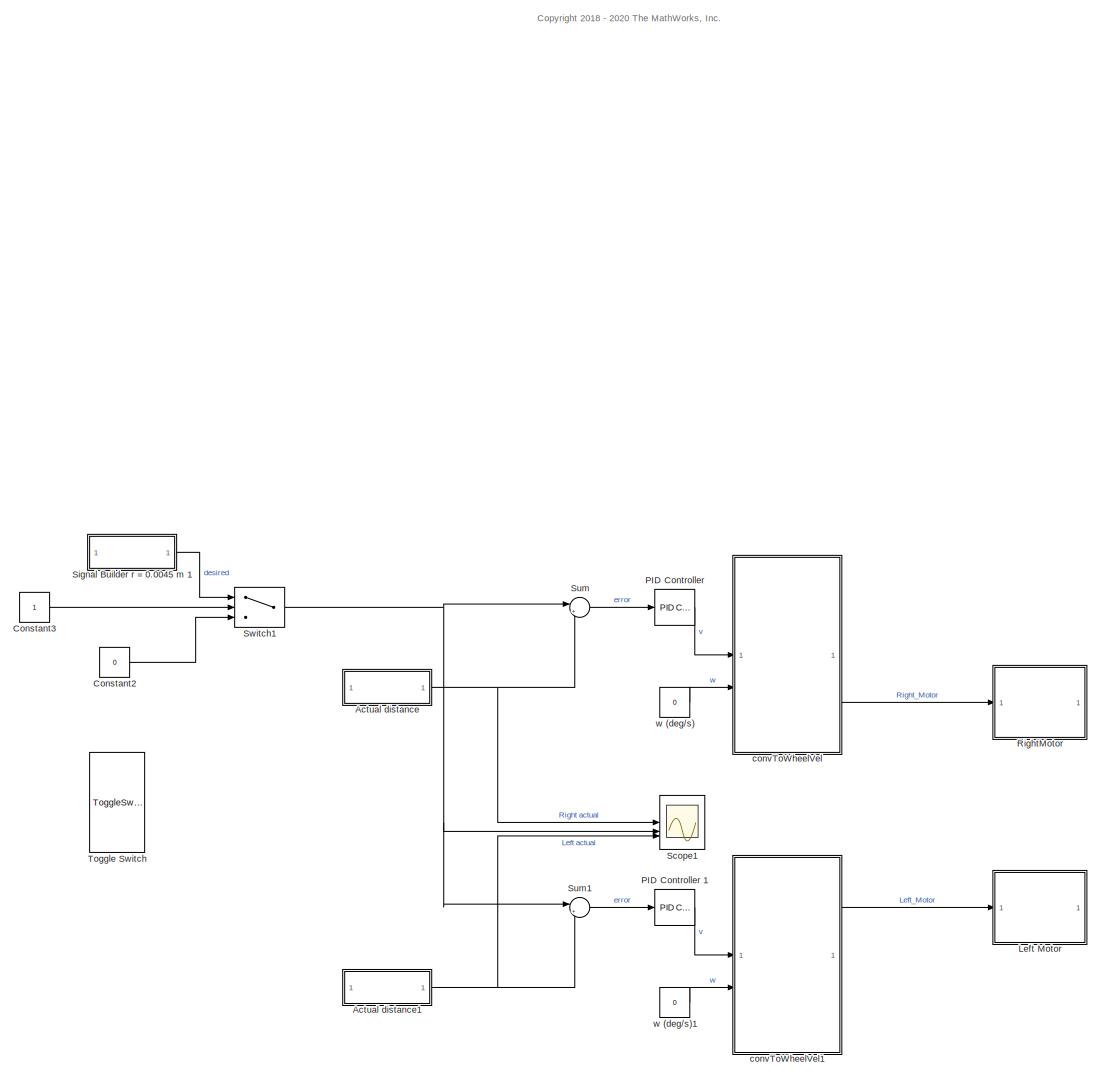
[diagram: root canvas - part 1/3, central region]
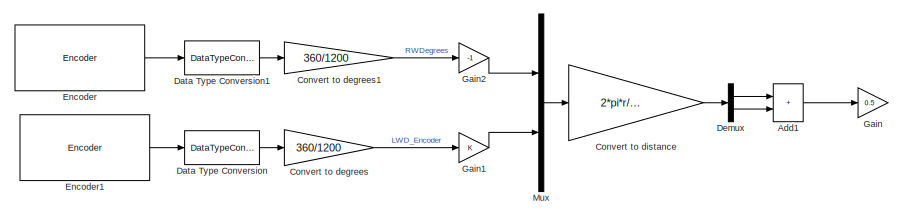
[diagram: root canvas - part 2/3, bottom left region]
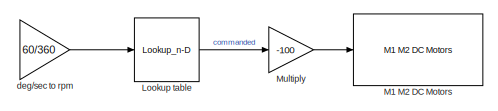
[diagram: root canvas - part 3/3, bottom right region]
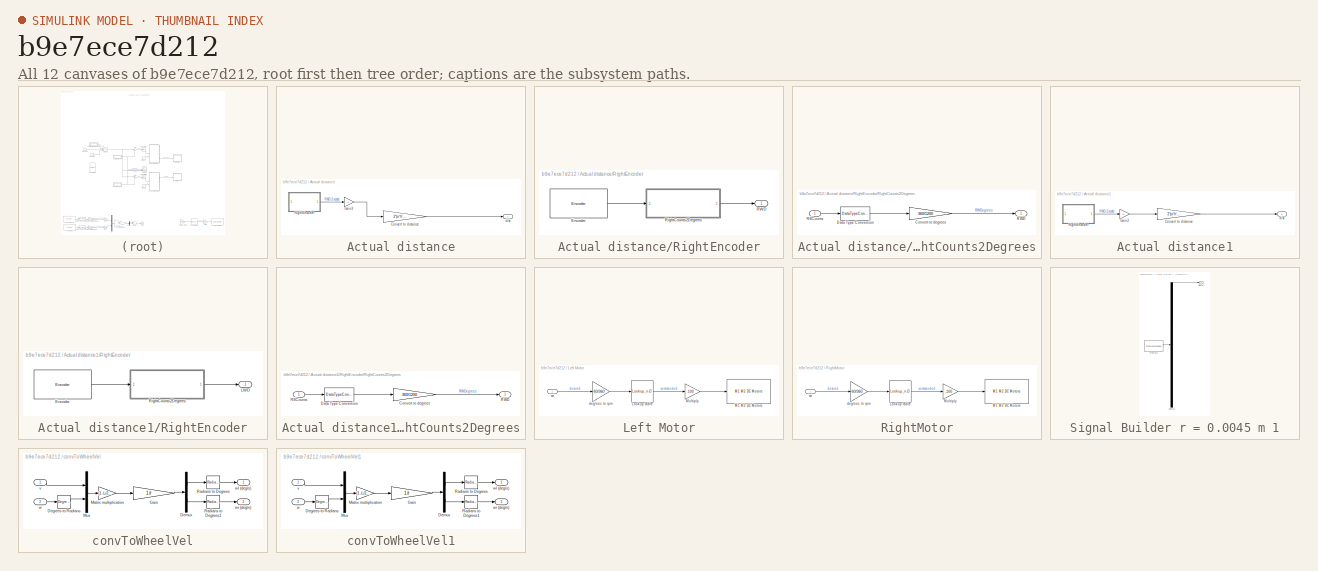
[diagram: thumbnail index - all 12 canvases of the model, root first then tree order]
MODEL slx_b9e7ece7d212
KIND model
CONFIG AbsTol = auto
CONFIG EnableMultiTasking = on
CONFIG FixedStep = TS
CONFIG MaxStep = auto
CONFIG MinStep = auto
CONFIG PostLoadFcn = paramsBasicKinematics\nload('motorResponse.mat')
CONFIG RelTol = 1e-3
CONFIG SampleTimeConstraint = Unconstrained
CONFIG SolverName = FixedStepAuto
CONFIG StartTime = 0.0
CONFIG StopTime = 30
WORKSPACE source: mxarray member
WORKSPACE TS = 0.01
BLOCK [SubSystem] Actual distance
BLOCK [Gain] Actual distance/Convert to distance
  Gain = 2*pi*r/360
BLOCK [Gain] Actual distance/Gain2
  Gain = -1
BLOCK [SubSystem] Actual distance/RightEncoder
BLOCK [Reference] Actual distance/RightEncoder/Encoder  REF=arduinomotorcarrierlib/Encoder
  SourceBlock = arduinomotorcarrierlib/Encoder
  SourceType = motorcarrier.blocks.mkrmotorcarrier_Encoder
BLOCK [Outport] Actual distance/RightEncoder/RWD
  VectorParamsAs1DForOutWhenUnconnected = off
BLOCK [SubSystem] Actual distance/RightEncoder/RightCounts2Degrees
BLOCK [Gain] Actual distance/RightEncoder/RightCounts2Degrees/Convert to degrees
  Gain = 360/1200
BLOCK [DataTypeConversion] Actual distance/RightEncoder/RightCounts2Degrees/Data Type Conversion
  OutDataTypeStr = double
  RndMeth = Floor
  SaturateOnIntegerOverflow = off
BLOCK [Inport] Actual distance/RightEncoder/RightCounts2Degrees/RECounts
BLOCK [Outport] Actual distance/RightEncoder/RightCounts2Degrees/RWD
  VectorParamsAs1DForOutWhenUnconnected = off
BLOCK [Outport] Actual distance/dist
  VectorParamsAs1DForOutWhenUnconnected = off
BLOCK [SubSystem] Actual distance1
BLOCK [Gain] Actual distance1/Convert to distance
  Gain = 2*pi*r/360
BLOCK [Gain] Actual distance1/Gain2
BLOCK [SubSystem] Actual distance1/RightEncoder
BLOCK [Reference] Actual distance1/RightEncoder/Encoder  REF=arduinomotorcarrierlib/Encoder
  SourceBlock = arduinomotorcarrierlib/Encoder
  SourceType = motorcarrier.blocks.mkrmotorcarrier_Encoder
BLOCK [Outport] Actual distance1/RightEncoder/LWD
  VectorParamsAs1DForOutWhenUnconnected = off
BLOCK [SubSystem] Actual distance1/RightEncoder/RightCounts2Degrees
BLOCK [Gain] Actual distance1/RightEncoder/RightCounts2Degrees/Convert to degrees
  Gain = 360/1200
BLOCK [DataTypeConversion] Actual distance1/RightEncoder/RightCounts2Degrees/Data Type Conversion
  OutDataTypeStr = double
  RndMeth = Floor
  SaturateOnIntegerOverflow = off
BLOCK [Inport] Actual distance1/RightEncoder/RightCounts2Degrees/RECounts
BLOCK [Outport] Actual distance1/RightEncoder/RightCounts2Degrees/RWD
  VectorParamsAs1DForOutWhenUnconnected = off
BLOCK [Outport] Actual distance1/dist
  VectorParamsAs1DForOutWhenUnconnected = off
BLOCK [Sum] Add1
  Commented = on
  IconShape = rectangular
BLOCK [Constant] Constant2
  Value = 0
BLOCK [Constant] Constant3
BLOCK [Gain] Convert to degrees
  Commented = on
  Gain = 360/1200
BLOCK [Gain] Convert to degrees1
  Commented = on
  Gain = 360/1200
BLOCK [Gain] Convert to distance
  Commented = on
  Gain = 2*pi*r/360
BLOCK [DataTypeConversion] Data Type Conversion
  Commented = on
  OutDataTypeStr = double
  RndMeth = Floor
  SaturateOnIntegerOverflow = off
BLOCK [DataTypeConversion] Data Type Conversion1
  Commented = on
  OutDataTypeStr = double
  RndMeth = Floor
  SaturateOnIntegerOverflow = off
BLOCK [Demux] Demux
  Commented = on
  Outputs = 2
BLOCK [Reference] Encoder  REF=arduinomotorcarrierlib/Encoder
  Commented = on
  SourceBlock = arduinomotorcarrierlib/Encoder
  SourceType = motorcarrier.blocks.mkrmotorcarrier_Encoder
BLOCK [Reference] Encoder1  REF=arduinomotorcarrierlib/Encoder
  Commented = on
  SourceBlock = arduinomotorcarrierlib/Encoder
  SourceType = motorcarrier.blocks.mkrmotorcarrier_Encoder
BLOCK [Gain] Gain
  Commented = on
  Gain = 0.5
BLOCK [Gain] Gain1
  Commented = on
BLOCK [Gain] Gain2
  Commented = on
  Gain = -1
BLOCK [SubSystem] Left Motor
BLOCK [Lookup_n-D] Left Motor/Lookup table
  BreakpointsForDimension1 = speedMono
  InputPortMap = u0
  InternalRulePriority = Speed
  NumberOfTableDimensions = 1
  RndMeth = Simplest
  Table = PWMcmdMono
  UseLastTableValue = on
BLOCK [Reference] Left Motor/M1 M2 DC Motors  REF=arduinomotorcarrierlib/M1 M2 DC Motors
  SourceBlock = arduinomotorcarrierlib/M1 M2 DC Motors
  SourceType = DC Motor
BLOCK [Gain] Left Motor/Multiply
  Gain = 100
BLOCK [Gain] Left Motor/deg//sec to rpm
  Gain = 60/360
BLOCK [Inport] Left Motor/wr
BLOCK [Lookup_n-D] Lookup table
  BreakpointsForDimension1 = speedMono_R
  Commented = on
  InputPortMap = u0
  InternalRulePriority = Speed
  NumberOfTableDimensions = 1
  RndMeth = Simplest
  Table = PWMcmdMono_R
  UseLastTableValue = on
BLOCK [Reference] M1 M2 DC Motors  REF=arduinomotorcarrierlib/M1 M2 DC Motors
  Commented = on
  SourceBlock = arduinomotorcarrierlib/M1 M2 DC Motors
  SourceType = DC Motor
BLOCK [Gain] Multiply
  Commented = on
  Gain = -100
BLOCK [Mux] Mux
  Commented = on
  DisplayOption = bar
  Inputs = 2
BLOCK [Reference] PID Controller   REF=slpidlib/PID Controller
  SourceBlock = slpidlib/PID Controller
  SourceType = PID 1dof
BLOCK [Reference] PID Controller 1  REF=slpidlib/PID Controller
  SourceBlock = slpidlib/PID Controller
  SourceType = PID 1dof
BLOCK [SubSystem] RightMotor
BLOCK [Lookup_n-D] RightMotor/Lookup table
  BreakpointsForDimension1 = speedMono
  InputPortMap = u0
  InternalRulePriority = Speed
  NumberOfTableDimensions = 1
  RndMeth = Simplest
  Table = PWMcmdMono
  UseLastTableValue = on
BLOCK [Reference] RightMotor/M1 M2 DC Motors  REF=arduinomotorcarrierlib/M1 M2 DC Motors
  SourceBlock = arduinomotorcarrierlib/M1 M2 DC Motors
  SourceType = DC Motor
BLOCK [Gain] RightMotor/Multiply
  Gain = -100
BLOCK [Gain] RightMotor/deg//sec to rpm
  Gain = 60/360
BLOCK [Inport] RightMotor/wr
BLOCK [Scope] Scope1
  Floating = off
  NumInputPorts = 3
  ScopeSpecificationString = Simulink.scopes.TimeScopeBlockCfg('CurrentConfiguration', extmgr.ConfigurationSet(extmgr.Configuration('Core','General UI',true),extmgr.Configuration('Core','Source UI',true),extmgr.Configuration('Sources','WiredSimulink',true,'DataLoggingVariableName','ScopeData1'),extmgr.Configuration('Visuals','Time Domain',true,'SerializedDisplays',{struct('MinYLimReal','-7.88442','MaxYLimReal','34.90997','YLa...<+2455ch>
BLOCK [SubSystem] Signal Builder r = 0.0045 m 1
  ClipboardFcn = sigbuilder_block('clipboard');
  CloseFcn = sigbuilder_block('close');
  ContinueFcn = sigbuilder_block('continue');
  CopyFcn = sigbuilder_block('copy');
  DeleteFcn = sigbuilder_block('delete');
  LoadFcn = sigbuilder_block('load');
  MaskHideContents = on
  ModelCloseFcn = sigbuilder_block('modelClose');
  NameChangeFcn = sigbuilder_block('namechange');
  OpenFcn = sigbuilder_block('open',[5.25 125.25 660.75 283.5 ]);
  PauseFcn = sigbuilder_block('pause');
  PreSaveFcn = sigbuilder_block('preSave');
  StartFcn = sigbuilder_block('start');
  StopFcn = sigbuilder_block('stop');
  Tag = STV Subsys
BLOCK [Demux] Signal Builder r = 0.0045 m 1/Demux
  DisplayOption = none
  Outputs = 1
  Tag = STV Demux
BLOCK [FromWorkspace] Signal Builder r = 0.0045 m 1/FromWs
  Tag = STV FromWs
  VariableName = tuvar
BLOCK [Outport] Signal Builder r = 0.0045 m 1/Signal 1
  Tag = STV Outport
  VectorParamsAs1DForOutWhenUnconnected = off
BLOCK [Sum] Sum
  Inputs = |+-
BLOCK [Sum] Sum1
  Inputs = |+-
BLOCK [Switch] Switch1
  Criteria = u2 > Threshold
  InputSameDT = off
  SaturateOnIntegerOverflow = off
BLOCK [ToggleSwitchBlock] Toggle Switch
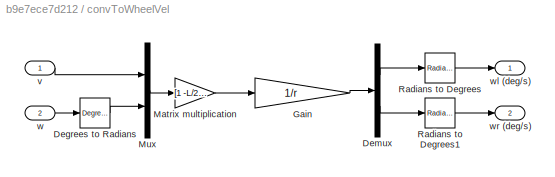
BLOCK [SubSystem] convToWheelVel
BLOCK [Gain] convToWheelVel/ Gain
  Gain = 1/r
  Multiplication = Matrix(K*u)
BLOCK [Reference] convToWheelVel/Degrees to Radians  REF=simulink_extras/Transformations/Degrees to
Radians
  SourceBlock = simulink_extras/Transformations/Degrees to\nRadians
  SourceType = DegreesToRadians
BLOCK [Demux] convToWheelVel/Demux
  Outputs = 2
BLOCK [Gain] convToWheelVel/Matrix multiplication
  Gain = [1 -L/2; 1 L/2]
  Multiplication = Matrix(K*u)
BLOCK [Mux] convToWheelVel/Mux
  DisplayOption = bar
  Inputs = 2
BLOCK [Reference] convToWheelVel/Radians to Degrees  REF=simulink_extras/Transformations/Radians
to Degrees
  SourceBlock = simulink_extras/Transformations/Radians\nto Degrees
  SourceType = RadiansToDegrees
BLOCK [Reference] convToWheelVel/Radians to Degrees1  REF=simulink_extras/Transformations/Radians
to Degrees
  SourceBlock = simulink_extras/Transformations/Radians\nto Degrees
  SourceType = RadiansToDegrees
BLOCK [Inport] convToWheelVel/v
BLOCK [Inport] convToWheelVel/w
  Port = 2
BLOCK [Outport] convToWheelVel/wl (deg//s)
  VectorParamsAs1DForOutWhenUnconnected = off
BLOCK [Outport] convToWheelVel/wr (deg//s)
  Port = 2
  VectorParamsAs1DForOutWhenUnconnected = off
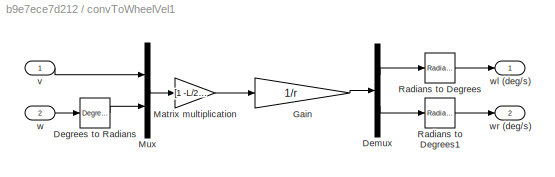
BLOCK [SubSystem] convToWheelVel1
BLOCK [Gain] convToWheelVel1/ Gain
  Gain = 1/r
  Multiplication = Matrix(K*u)
BLOCK [Reference] convToWheelVel1/Degrees to Radians  REF=simulink_extras/Transformations/Degrees to
Radians
  SourceBlock = simulink_extras/Transformations/Degrees to\nRadians
  SourceType = DegreesToRadians
BLOCK [Demux] convToWheelVel1/Demux
  Outputs = 2
BLOCK [Gain] convToWheelVel1/Matrix multiplication
  Gain = [1 -L/2; 1 L/2]
  Multiplication = Matrix(K*u)
BLOCK [Mux] convToWheelVel1/Mux
  DisplayOption = bar
  Inputs = 2
BLOCK [Reference] convToWheelVel1/Radians to Degrees  REF=simulink_extras/Transformations/Radians
to Degrees
  SourceBlock = simulink_extras/Transformations/Radians\nto Degrees
  SourceType = RadiansToDegrees
BLOCK [Reference] convToWheelVel1/Radians to Degrees1  REF=simulink_extras/Transformations/Radians
to Degrees
  SourceBlock = simulink_extras/Transformations/Radians\nto Degrees
  SourceType = RadiansToDegrees
BLOCK [Inport] convToWheelVel1/v
BLOCK [Inport] convToWheelVel1/w
  Port = 2
BLOCK [Outport] convToWheelVel1/wl (deg//s)
  VectorParamsAs1DForOutWhenUnconnected = off
BLOCK [Outport] convToWheelVel1/wr (deg//s)
  Port = 2
  VectorParamsAs1DForOutWhenUnconnected = off
BLOCK [Gain] deg//sec to rpm
  Commented = on
  Gain = 60/360
BLOCK [Constant] w (deg//s)
  Value = 0
BLOCK [Constant] w (deg//s)1
  Value = 0
ANNOTATION (root): <copyright redacted>
LINE Actual distance/Convert to distance:1 -> Actual distance/dist:1
LINE Actual distance/Gain2:1 -> Actual distance/Convert to distance:1
LINE Actual distance/RightEncoder/Encoder:1 -> Actual distance/RightEncoder/RightCounts2Degrees:1
LINE Actual distance/RightEncoder/RightCounts2Degrees/Convert to degrees:1 -> Actual distance/RightEncoder/RightCounts2Degrees/RWD:1
LINE Actual distance/RightEncoder/RightCounts2Degrees/Data Type Conversion:1 -> Actual distance/RightEncoder/RightCounts2Degrees/Convert to degrees:1
LINE Actual distance/RightEncoder/RightCounts2Degrees/RECounts:1 -> Actual distance/RightEncoder/RightCounts2Degrees/Data Type Conversion:1
LINE Actual distance/RightEncoder/RightCounts2Degrees:1 -> Actual distance/RightEncoder/RWD:1
LINE Actual distance/RightEncoder:1 -> Actual distance/Gain2:1
LINE Actual distance1/Convert to distance:1 -> Actual distance1/dist:1
LINE Actual distance1/Gain2:1 -> Actual distance1/Convert to distance:1
LINE Actual distance1/RightEncoder/Encoder:1 -> Actual distance1/RightEncoder/RightCounts2Degrees:1
LINE Actual distance1/RightEncoder/RightCounts2Degrees/Convert to degrees:1 -> Actual distance1/RightEncoder/RightCounts2Degrees/RWD:1
LINE Actual distance1/RightEncoder/RightCounts2Degrees/Data Type Conversion:1 -> Actual distance1/RightEncoder/RightCounts2Degrees/Convert to degrees:1
LINE Actual distance1/RightEncoder/RightCounts2Degrees/RECounts:1 -> Actual distance1/RightEncoder/RightCounts2Degrees/Data Type Conversion:1
LINE Actual distance1/RightEncoder/RightCounts2Degrees:1 -> Actual distance1/RightEncoder/LWD:1
LINE Actual distance1/RightEncoder:1 -> Actual distance1/Gain2:1
NET Actual distance1:1 -> Scope1:3, Sum1:2
NET Actual distance:1 -> Scope1:1, Sum:2
LINE Add1:1 -> Gain:1
LINE Constant2:1 -> Switch1:3
LINE Constant3:1 -> Switch1:2
LINE Convert to degrees1:1 -> Gain2:1
LINE Convert to degrees:1 -> Gain1:1
LINE Convert to distance:1 -> Demux:1
LINE Data Type Conversion1:1 -> Convert to degrees1:1
LINE Data Type Conversion:1 -> Convert to degrees:1
LINE Demux:1 -> Add1:1
LINE Demux:2 -> Add1:2
LINE Encoder1:1 -> Data Type Conversion:1
LINE Encoder:1 -> Data Type Conversion1:1
LINE Gain1:1 -> Mux:2
LINE Gain2:1 -> Mux:1
LINE Left Motor/Lookup table:1 -> Left Motor/Multiply:1
LINE Left Motor/Multiply:1 -> Left Motor/M1 M2 DC Motors:1
LINE Left Motor/deg//sec to rpm:1 -> Left Motor/Lookup table:1
LINE Left Motor/wr:1 -> Left Motor/deg//sec to rpm:1
LINE Lookup table:1 -> Multiply:1
LINE Multiply:1 -> M1 M2 DC Motors:1
LINE Mux:1 -> Convert to distance:1
LINE PID Controller 1:1 -> convToWheelVel1:1
LINE PID Controller :1 -> convToWheelVel:1
LINE RightMotor/Lookup table:1 -> RightMotor/Multiply:1
LINE RightMotor/Multiply:1 -> RightMotor/M1 M2 DC Motors:1
LINE RightMotor/deg//sec to rpm:1 -> RightMotor/Lookup table:1
LINE RightMotor/wr:1 -> RightMotor/deg//sec to rpm:1
LINE Signal Builder r = 0.0045 m 1:1 -> Switch1:1
LINE Sum1:1 -> PID Controller 1:1
LINE Sum:1 -> PID Controller :1
NET Switch1:1 -> Scope1:2, Sum1:1, Sum:1
LINE convToWheelVel/ Gain:1 -> convToWheelVel/Demux:1
LINE convToWheelVel/Degrees to Radians:1 -> convToWheelVel/Mux:2
LINE convToWheelVel/Demux:1 -> convToWheelVel/Radians to Degrees:1
LINE convToWheelVel/Demux:2 -> convToWheelVel/Radians to Degrees1:1
LINE convToWheelVel/Matrix multiplication:1 -> convToWheelVel/ Gain:1
LINE convToWheelVel/Mux:1 -> convToWheelVel/Matrix multiplication:1
LINE convToWheelVel/Radians to Degrees1:1 -> convToWheelVel/wr (deg//s):1
LINE convToWheelVel/Radians to Degrees:1 -> convToWheelVel/wl (deg//s):1
LINE convToWheelVel/v:1 -> convToWheelVel/Mux:1
LINE convToWheelVel/w:1 -> convToWheelVel/Degrees to Radians:1
LINE convToWheelVel1/ Gain:1 -> convToWheelVel1/Demux:1
LINE convToWheelVel1/Degrees to Radians:1 -> convToWheelVel1/Mux:2
LINE convToWheelVel1/Demux:1 -> convToWheelVel1/Radians to Degrees:1
LINE convToWheelVel1/Demux:2 -> convToWheelVel1/Radians to Degrees1:1
LINE convToWheelVel1/Matrix multiplication:1 -> convToWheelVel1/ Gain:1
LINE convToWheelVel1/Mux:1 -> convToWheelVel1/Matrix multiplication:1
LINE convToWheelVel1/Radians to Degrees1:1 -> convToWheelVel1/wr (deg//s):1
LINE convToWheelVel1/Radians to Degrees:1 -> convToWheelVel1/wl (deg//s):1
LINE convToWheelVel1/v:1 -> convToWheelVel1/Mux:1
LINE convToWheelVel1/w:1 -> convToWheelVel1/Degrees to Radians:1
LINE convToWheelVel1:1 -> Left Motor:1
LINE convToWheelVel:2 -> RightMotor:1
LINE deg//sec to rpm:1 -> Lookup table:1
LINE w (deg//s)1:1 -> convToWheelVel1:2
LINE w (deg//s):1 -> convToWheelVel:2
note: NET lines group one-source signal fan-out (src -> all destinations, sorted); 1:1 wires keep LINE
